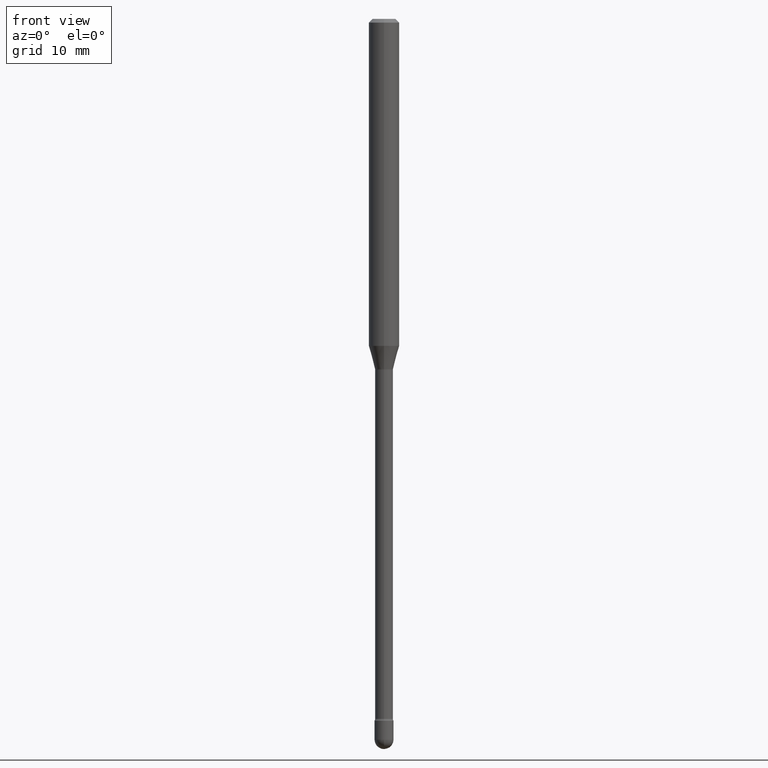
[diagram: clean part render]
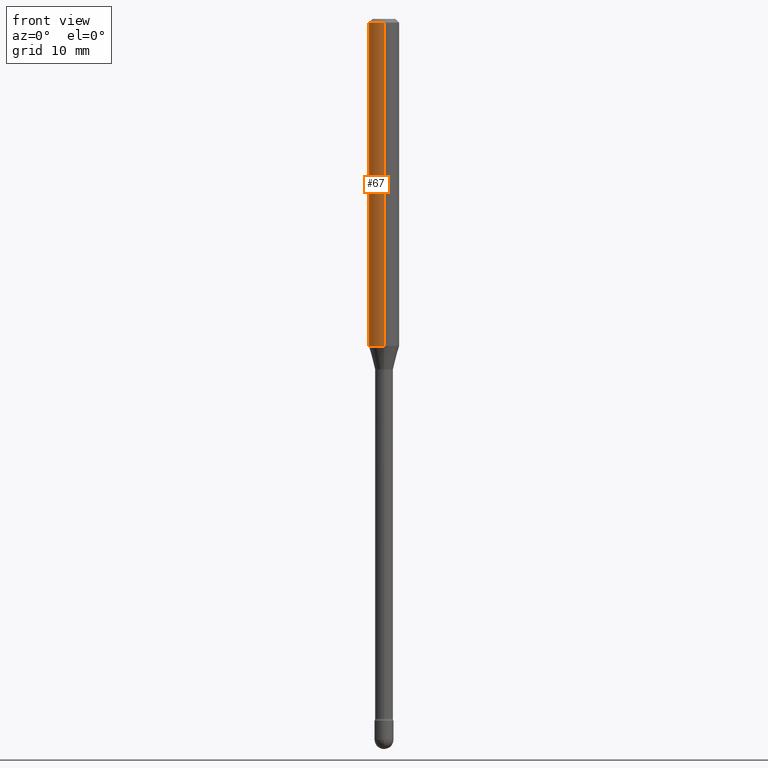
[diagram: same view with one face highlighted and labeled with its STEP entity id]
A machine part, front view. The second image highlights one B-rep face of the part: STEP entity #67.
In plain terms, the highlighted cylindrical surface (edge-blend (fillet) strip) has radius 1.5875 mm, axis along (-0, 0, 1).
Its self-contained STEP definition (entity closure, byte-faithful):
#29 = CARTESIAN_POINT ( 'NONE',  ( 3.668244747686732990E-31, -5.237162522898829216E-17, -0.01500000000000008271 ) ) ;
#31 = CARTESIAN_POINT ( 'NONE',  ( 3.285589318625157150E-29, -4.690844376180609543E-15, -1.343526486624344818 ) ) ;
#54 = VERTEX_POINT ( 'NONE', #378 ) ;
#56 = CIRCLE ( 'NONE', #537, 0.06250000000000000000 ) ;
#67 = ADVANCED_FACE ( 'NONE', ( #513 ), #251, .T. ) ;
#74 = EDGE_LOOP ( 'NONE', ( #386, #480, #143, #238 ) ) ;
#134 = DIRECTION ( 'NONE',  ( -6.982962677686265922E-15, -1.000000000000000000, 3.491441681932533187E-15 ) ) ;
#143 = ORIENTED_EDGE ( 'NONE', *, *, #440, .T. ) ;
#149 = CARTESIAN_POINT ( 'NONE',  ( -4.364351673553912750E-16, -0.06250000000000005551, -0.01499999999999986587 ) ) ;
#153 = CARTESIAN_POINT ( 'NONE',  ( 4.440892098500625669E-16, 0.06250000000000000000, 2.598582937704627637E-16 ) ) ;
#156 = DIRECTION ( 'NONE',  ( -2.445496498457808529E-29, 3.491441681932533187E-15, 1.000000000000000000 ) ) ;
#157 = VERTEX_POINT ( 'NONE', #529 ) ;
#175 = DIRECTION ( 'NONE',  ( -2.445496498457808529E-29, 3.491441681932533187E-15, 1.000000000000000000 ) ) ;
#183 = VECTOR ( 'NONE', #340, 39.37007874015748143 ) ;
#194 = DIRECTION ( 'NONE',  ( -2.445496498457808529E-29, 3.491441681932533187E-15, 1.000000000000000000 ) ) ;
#200 = CARTESIAN_POINT ( 'NONE',  ( 4.440892098500952553E-16, 0.06249999999999528155, -1.343526486624345040 ) ) ;
#209 = VECTOR ( 'NONE', #337, 39.37007874015748143 ) ;
#238 = ORIENTED_EDGE ( 'NONE', *, *, #429, .F. ) ;
#247 = DIRECTION ( 'NONE',  ( -6.982962677686265922E-15, -1.000000000000000000, 3.483106191921935554E-15 ) ) ;
#251 = CYLINDRICAL_SURFACE ( 'NONE', #342, 0.06250000000000000000 ) ;
#282 = AXIS2_PLACEMENT_3D ( 'NONE', #29, #156, #247 ) ;
#312 = CARTESIAN_POINT ( 'NONE',  ( -1.169113584055446105E-44, 1.669184350826100908E-30, 4.780733988912460139E-16 ) ) ;
#335 = CARTESIAN_POINT ( 'NONE',  ( -4.364351673553916201E-16, -0.06250000000000000000, 6.962885040120294121E-16 ) ) ;
#337 = DIRECTION ( 'NONE',  ( -2.445496498457808529E-29, 3.491441681932533582E-15, 1.000000000000000000 ) ) ;
#340 = DIRECTION ( 'NONE',  ( -2.445496498457808529E-29, 3.491441681932533582E-15, 1.000000000000000000 ) ) ;
#342 = AXIS2_PLACEMENT_3D ( 'NONE', #312, #175, #134 ) ;
#378 = CARTESIAN_POINT ( 'NONE',  ( 4.440892098500956497E-16, 0.06249999999999993755, -0.01500000000000030129 ) ) ;
#379 = DIRECTION ( 'NONE',  ( -6.982962677686265922E-15, -1.000000000000000000, 4.370956789862821150E-15 ) ) ;
#386 = ORIENTED_EDGE ( 'NONE', *, *, #533, .F. ) ;
#429 = EDGE_CURVE ( 'NONE', #54, #465, #456, .T. ) ;
#440 = EDGE_CURVE ( 'NONE', #157, #465, #457, .T. ) ;
#446 = VERTEX_POINT ( 'NONE', #200 ) ;
#448 = EDGE_CURVE ( 'NONE', #446, #157, #56, .T. ) ;
#456 = CIRCLE ( 'NONE', #282, 0.06250000000000000000 ) ;
#457 = LINE ( 'NONE', #335, #209 ) ;
#465 = VERTEX_POINT ( 'NONE', #149 ) ;
#480 = ORIENTED_EDGE ( 'NONE', *, *, #448, .T. ) ;
#513 = FACE_OUTER_BOUND ( 'NONE', #74, .T. ) ;
#529 = CARTESIAN_POINT ( 'NONE',  ( -4.364351673553589810E-16, -0.06250000000000471845, -1.343526486624344596 ) ) ;
#533 = EDGE_CURVE ( 'NONE', #446, #54, #558, .T. ) ;
#537 = AXIS2_PLACEMENT_3D ( 'NONE', #31, #194, #379 ) ;
#558 = LINE ( 'NONE', #153, #183 ) ;